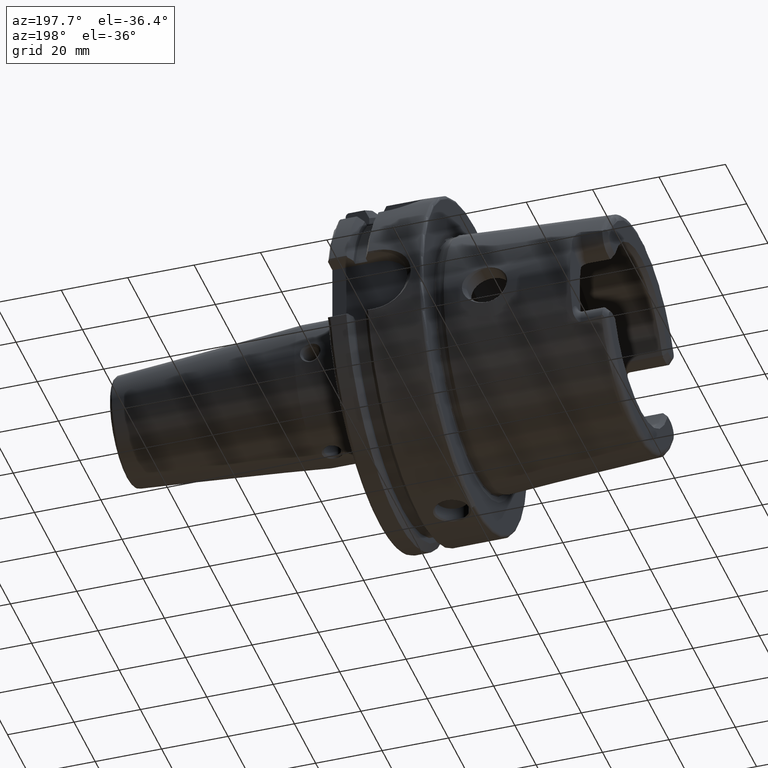
[diagram: clean part render]
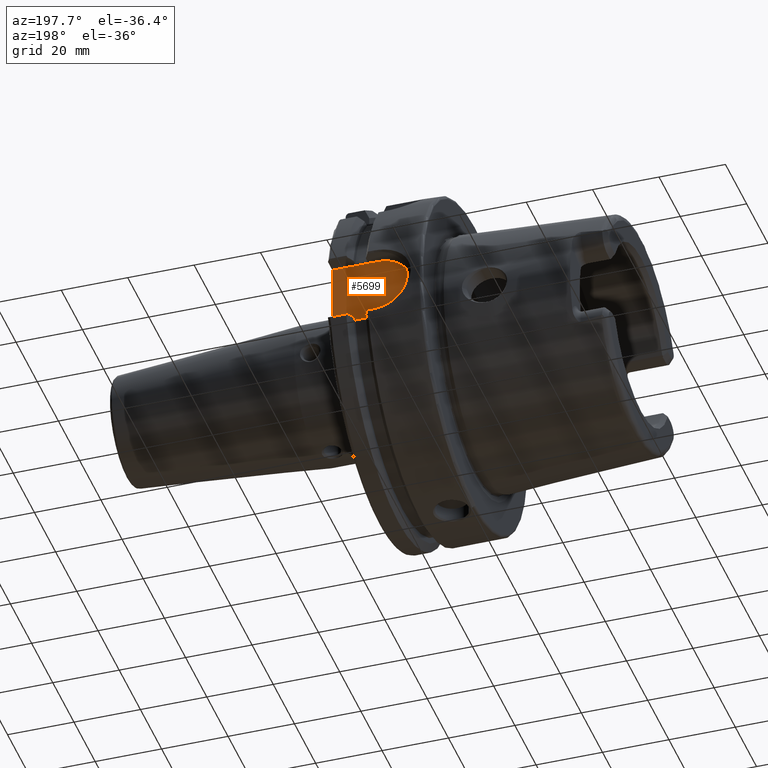
[diagram: same view with one face highlighted and labeled with its STEP entity id]
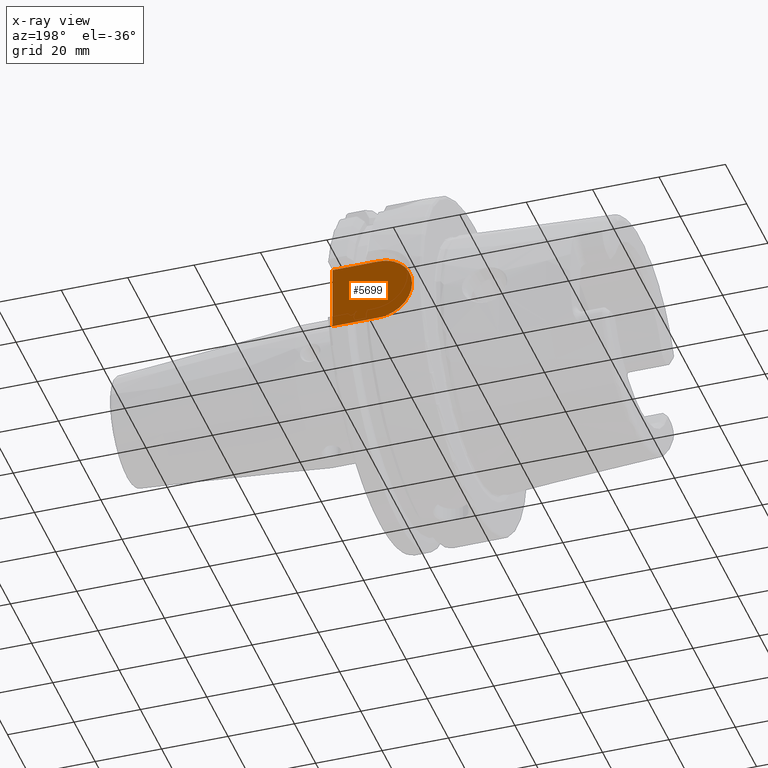
[diagram: x-ray of the same camera — body ghosted, the highlighted face saturated]
A machine part, auxiliary view. The second image highlights one B-rep face of the part: STEP entity #5699.
The next image is the same camera in x-ray: the body ghosted, the highlighted face saturated — about 0% of this face is hidden behind the body in this view.
In plain terms, the highlighted planar face has unit normal (0, 1, 0).
Its self-contained STEP definition (entity closure, byte-faithful):
#2034=CARTESIAN_POINT('',(1.5E1,4.4E1,0.E0));
#2035=DIRECTION('',(0.E0,-1.E0,0.E0));
#2036=DIRECTION('',(0.E0,0.E0,1.E0));
#2037=AXIS2_PLACEMENT_3D('',#2034,#2035,#2036);
#2039=CARTESIAN_POINT('',(1.5E1,4.4E1,0.E0));
#2040=DIRECTION('',(0.E0,-1.E0,0.E0));
#2041=DIRECTION('',(-1.E0,0.E0,0.E0));
#2042=AXIS2_PLACEMENT_3D('',#2039,#2040,#2041);
#2044=DIRECTION('',(1.E0,0.E0,0.E0));
#2045=VECTOR('',#2044,1.4E1);
#2046=CARTESIAN_POINT('',(1.5E1,4.4E1,-1.E1));
#2047=LINE('',#2046,#2045);
#2048=DIRECTION('',(0.E0,0.E0,1.E0));
#2049=VECTOR('',#2048,2.E1);
#2050=CARTESIAN_POINT('',(2.9E1,4.4E1,-1.E1));
#2051=LINE('',#2050,#2049);
#2052=DIRECTION('',(-1.E0,0.E0,0.E0));
#2053=VECTOR('',#2052,1.4E1);
#2054=CARTESIAN_POINT('',(2.9E1,4.4E1,1.E1));
#2055=LINE('',#2054,#2053);
#3337=CARTESIAN_POINT('',(2.9E1,4.4E1,-1.E1));
#3338=VERTEX_POINT('',#3337);
#3339=CARTESIAN_POINT('',(1.5E1,4.4E1,-1.E1));
#3340=VERTEX_POINT('',#3339);
#3361=CARTESIAN_POINT('',(2.9E1,4.4E1,1.E1));
#3362=VERTEX_POINT('',#3361);
#3394=CARTESIAN_POINT('',(1.5E1,4.4E1,1.E1));
#3395=VERTEX_POINT('',#3394);
#3418=CARTESIAN_POINT('',(5.E0,4.4E1,0.E0));
#3419=VERTEX_POINT('',#3418);
#5685=CARTESIAN_POINT('',(0.E0,4.4E1,0.E0));
#5686=DIRECTION('',(0.E0,1.E0,0.E0));
#5687=DIRECTION('',(1.E0,0.E0,0.E0));
#5688=AXIS2_PLACEMENT_3D('',#5685,#5686,#5687);
#5689=PLANE('',#5688);
#5691=ORIENTED_EDGE('',*,*,#5690,.T.);
#5693=ORIENTED_EDGE('',*,*,#5692,.T.);
#5694=ORIENTED_EDGE('',*,*,#5667,.T.);
#5695=ORIENTED_EDGE('',*,*,#5594,.T.);
#5696=ORIENTED_EDGE('',*,*,#5377,.T.);
#5697=EDGE_LOOP('',(#5691,#5693,#5694,#5695,#5696));
#5698=FACE_OUTER_BOUND('',#5697,.F.);
#5699=ADVANCED_FACE('',(#5698),#5689,.T.);
#2038=CIRCLE('',#2037,1.E1);
#2043=CIRCLE('',#2042,1.E1);
#5377=EDGE_CURVE('',#3362,#3395,#2055,.T.);
#5594=EDGE_CURVE('',#3338,#3362,#2051,.T.);
#5667=EDGE_CURVE('',#3340,#3338,#2047,.T.);
#5690=EDGE_CURVE('',#3395,#3419,#2038,.T.);
#5692=EDGE_CURVE('',#3419,#3340,#2043,.T.);